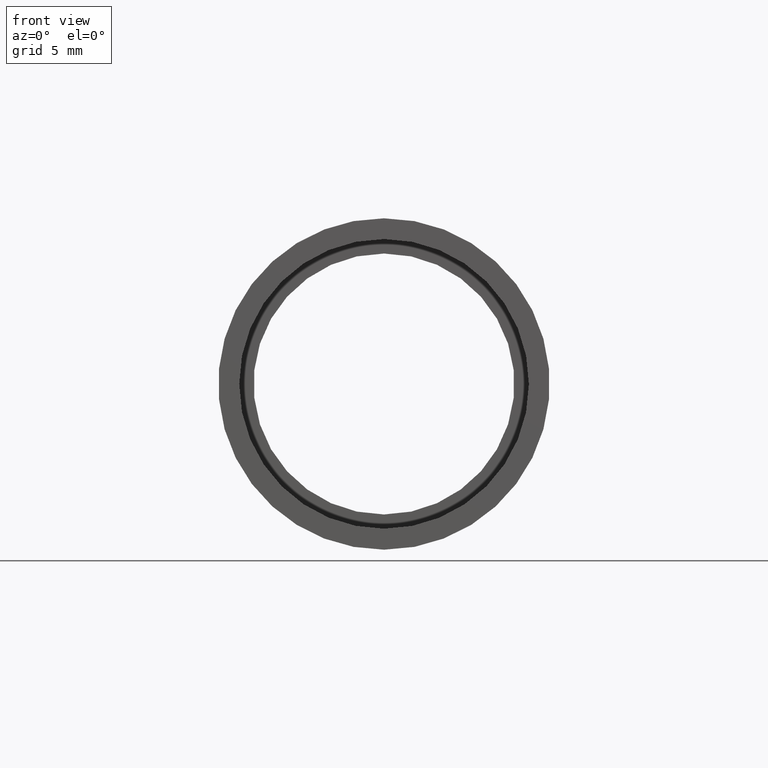
[diagram: clean part render]
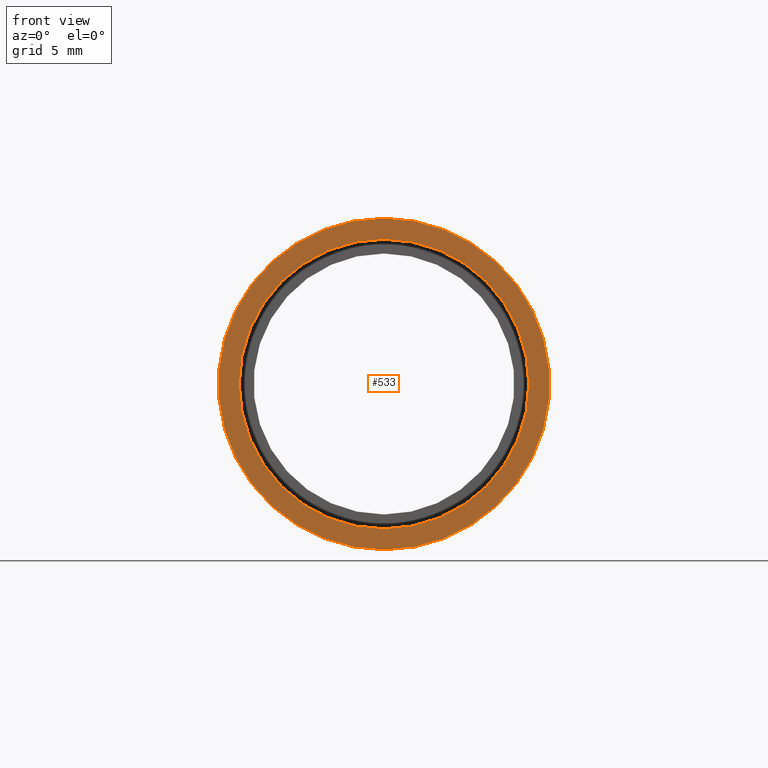
[diagram: same view with one face highlighted and labeled with its STEP entity id]
A machine part, front view. The second image highlights one B-rep face of the part: STEP entity #533.
In plain terms, the highlighted planar face has unit normal (-0, 1, 0).
Its self-contained STEP definition (entity closure, byte-faithful):
#2 = VERTEX_POINT ( 'NONE', #413 ) ;
#20 = CARTESIAN_POINT ( 'NONE',  ( 0.0000000000000000000, -2.775557561562891400E-014, 0.0000000000000000000 ) ) ;
#31 = FACE_BOUND ( 'NONE', #517, .T. ) ;
#38 = CARTESIAN_POINT ( 'NONE',  ( 0.0000000000000000000, -2.775557561562891400E-014, 11.10000000000001700 ) ) ;
#50 = CARTESIAN_POINT ( 'NONE',  ( 0.0000000000000000000, -2.775557561562891400E-014, 0.0000000000000000000 ) ) ;
#70 = CIRCLE ( 'NONE', #209, 11.10000000000001700 ) ;
#74 = EDGE_CURVE ( 'NONE', #164, #2, #472, .T. ) ;
#98 = ORIENTED_EDGE ( 'NONE', *, *, #582, .T. ) ;
#103 = DIRECTION ( 'NONE',  ( -0.0000000000000000000, 1.000000000000000000, -0.0000000000000000000 ) ) ;
#124 = CARTESIAN_POINT ( 'NONE',  ( 0.0000000000000000000, -2.775557561562891400E-014, 0.0000000000000000000 ) ) ;
#127 = DIRECTION ( 'NONE',  ( 0.0000000000000000000, 0.0000000000000000000, 1.000000000000000000 ) ) ;
#151 = DIRECTION ( 'NONE',  ( 0.0000000000000000000, 0.0000000000000000000, 1.000000000000000000 ) ) ;
#159 = CIRCLE ( 'NONE', #232, 12.70000000000002100 ) ;
#164 = VERTEX_POINT ( 'NONE', #38 ) ;
#181 = DIRECTION ( 'NONE',  ( -0.0000000000000000000, 1.000000000000000000, -0.0000000000000000000 ) ) ;
#193 = ORIENTED_EDGE ( 'NONE', *, *, #624, .F. ) ;
#199 = EDGE_LOOP ( 'NONE', ( #604, #193 ) ) ;
#209 = AXIS2_PLACEMENT_3D ( 'NONE', #20, #362, #323 ) ;
#221 = CARTESIAN_POINT ( 'NONE',  ( 11.10000000000001700, -1.580543700394483700E-014, 0.0000000000000000000 ) ) ;
#232 = AXIS2_PLACEMENT_3D ( 'NONE', #50, #103, #151 ) ;
#234 = AXIS2_PLACEMENT_3D ( 'NONE', #555, #181, #510 ) ;
#307 = ORIENTED_EDGE ( 'NONE', *, *, #74, .T. ) ;
#317 = DIRECTION ( 'NONE',  ( -0.0000000000000000000, 1.000000000000000000, 0.0000000000000000000 ) ) ;
#323 = DIRECTION ( 'NONE',  ( 0.0000000000000000000, 0.0000000000000000000, 1.000000000000000000 ) ) ;
#339 = EDGE_CURVE ( 'NONE', #552, #498, #159, .T. ) ;
#362 = DIRECTION ( 'NONE',  ( -0.0000000000000000000, 1.000000000000000000, -0.0000000000000000000 ) ) ;
#386 = AXIS2_PLACEMENT_3D ( 'NONE', #221, #317, #597 ) ;
#408 = CARTESIAN_POINT ( 'NONE',  ( 0.0000000000000000000, -2.775557561562891400E-014, 12.70000000000002100 ) ) ;
#413 = CARTESIAN_POINT ( 'NONE',  ( 1.359357947053564100E-015, -2.775557561562891400E-014, -11.10000000000001700 ) ) ;
#415 = PLANE ( 'NONE',  #386 ) ;
#450 = CARTESIAN_POINT ( 'NONE',  ( 1.555301434917141000E-015, -2.775557561562891400E-014, -12.70000000000002100 ) ) ;
#454 = AXIS2_PLACEMENT_3D ( 'NONE', #124, #457, #127 ) ;
#457 = DIRECTION ( 'NONE',  ( -0.0000000000000000000, 1.000000000000000000, -0.0000000000000000000 ) ) ;
#472 = CIRCLE ( 'NONE', #454, 11.10000000000001700 ) ;
#477 = CIRCLE ( 'NONE', #234, 12.70000000000002100 ) ;
#498 = VERTEX_POINT ( 'NONE', #450 ) ;
#510 = DIRECTION ( 'NONE',  ( 0.0000000000000000000, 0.0000000000000000000, 1.000000000000000000 ) ) ;
#517 = EDGE_LOOP ( 'NONE', ( #307, #98 ) ) ;
#533 = ADVANCED_FACE ( 'NONE', ( #610, #31 ), #415, .F. ) ;
#552 = VERTEX_POINT ( 'NONE', #408 ) ;
#555 = CARTESIAN_POINT ( 'NONE',  ( 0.0000000000000000000, -2.775557561562891400E-014, 0.0000000000000000000 ) ) ;
#582 = EDGE_CURVE ( 'NONE', #2, #164, #70, .T. ) ;
#597 = DIRECTION ( 'NONE',  ( 0.0000000000000000000, 0.0000000000000000000, 1.000000000000000000 ) ) ;
#604 = ORIENTED_EDGE ( 'NONE', *, *, #339, .F. ) ;
#610 = FACE_OUTER_BOUND ( 'NONE', #199, .T. ) ;
#624 = EDGE_CURVE ( 'NONE', #498, #552, #477, .T. ) ;